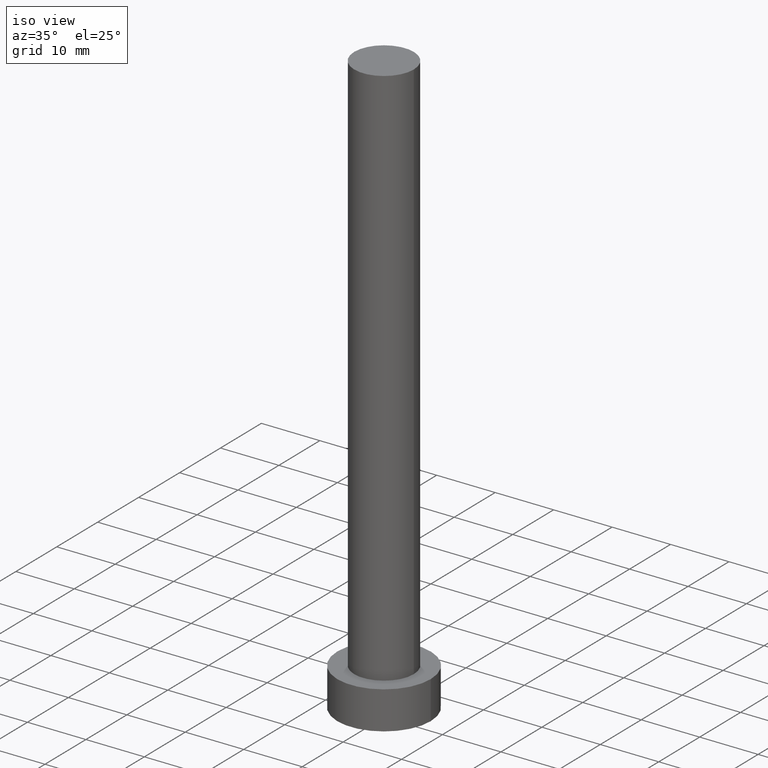
[diagram: clean part render]
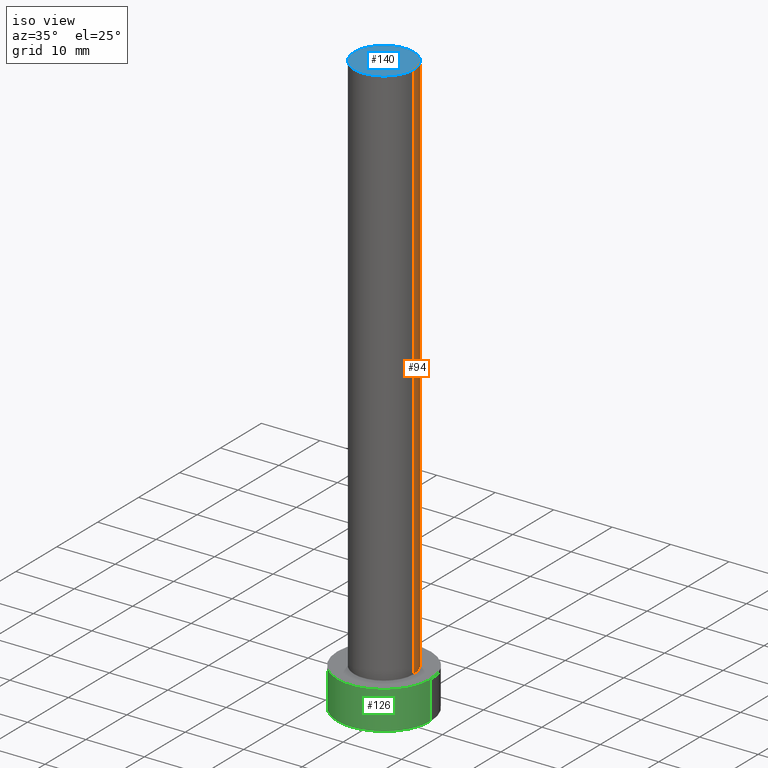
[diagram: same view with three faces highlighted in distinct colors, each labeled with its STEP entity id]
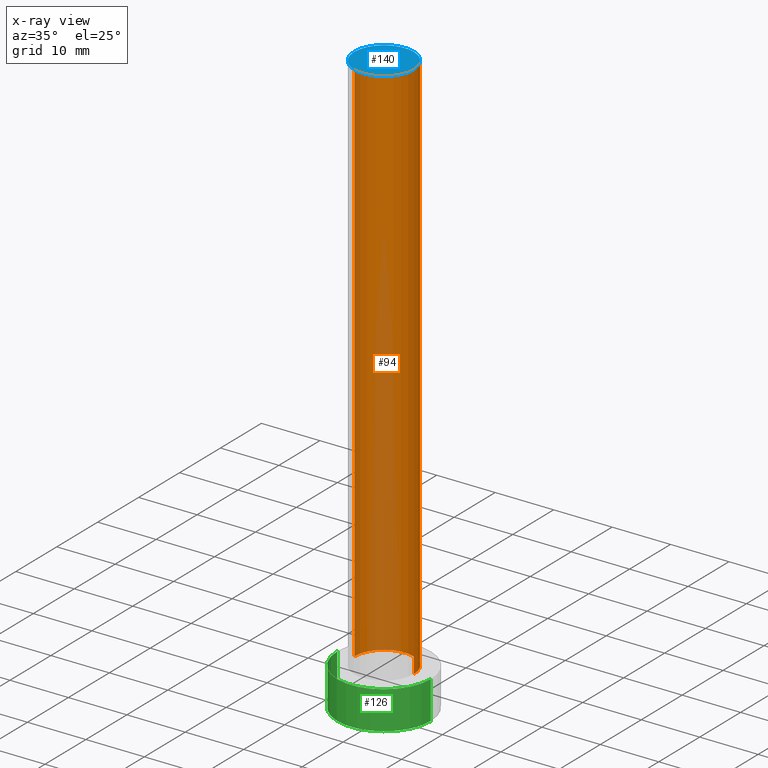
[diagram: x-ray of the same camera — body ghosted, the three highlighted faces saturated]
A machine part, iso view with three faces highlighted in distinct colors.
The next image is the same camera in x-ray (body ghosted, the three faces saturated) — at least one of them is partly hidden behind the body in this view.
Their STEP definitions:

[orange] entity #94 — the highlighted cylindrical surface (edge-blend (fillet) strip) has radius 5.1 mm, axis along (-0, -0, -1).
#39 = CARTESIAN_POINT ( 'NONE',  ( -5.100000000000001421, 0.000000000000000000, 100.0000000000000000 ) ) ;
#56 = VERTEX_POINT ( 'NONE', #221 ) ;
#58 = VERTEX_POINT ( 'NONE', #39 ) ;
#66 = DIRECTION ( 'NONE',  ( -0.000000000000000000, -0.000000000000000000, -1.000000000000000000 ) ) ;
#68 = DIRECTION ( 'NONE',  ( 1.000000000000000000, 0.000000000000000000, 0.000000000000000000 ) ) ;
#70 = DIRECTION ( 'NONE',  ( 0.000000000000000000, 0.000000000000000000, 1.000000000000000000 ) ) ;
#71 = CARTESIAN_POINT ( 'NONE',  ( 0.000000000000000000, 0.000000000000000000, 6.500000000000000000 ) ) ;
#82 = AXIS2_PLACEMENT_3D ( 'NONE', #217, #70, #207 ) ;
#87 = CARTESIAN_POINT ( 'NONE',  ( 0.000000000000000000, 0.000000000000000000, 100.0000000000000000 ) ) ;
#89 = CARTESIAN_POINT ( 'NONE',  ( -5.100000000000001421, 0.000000000000000000, 100.0000000000000000 ) ) ;
#92 = AXIS2_PLACEMENT_3D ( 'NONE', #71, #160, #68 ) ;
#93 = CIRCLE ( 'NONE', #82, 5.100000000000001421 ) ;
#94 = ADVANCED_FACE ( 'NONE', ( #215 ), #196, .T. ) ;
#106 = ORIENTED_EDGE ( 'NONE', *, *, #206, .T. ) ;
#123 = VERTEX_POINT ( 'NONE', #175 ) ;
#125 = ORIENTED_EDGE ( 'NONE', *, *, #192, .F. ) ;
#149 = CARTESIAN_POINT ( 'NONE',  ( 5.100000000000001421, 6.245698675651502811E-16, 100.0000000000000000 ) ) ;
#153 = DIRECTION ( 'NONE',  ( -1.000000000000000000, 0.000000000000000000, 0.000000000000000000 ) ) ;
#156 = CIRCLE ( 'NONE', #92, 5.100000000000001421 ) ;
#160 = DIRECTION ( 'NONE',  ( 0.000000000000000000, 0.000000000000000000, 1.000000000000000000 ) ) ;
#163 = DIRECTION ( 'NONE',  ( -0.000000000000000000, -0.000000000000000000, -1.000000000000000000 ) ) ;
#167 = VERTEX_POINT ( 'NONE', #181 ) ;
#175 = CARTESIAN_POINT ( 'NONE',  ( 5.100000000000001421, 6.245698675651502811E-16, 100.0000000000000000 ) ) ;
#178 = VECTOR ( 'NONE', #180, 1000.000000000000000 ) ;
#180 = DIRECTION ( 'NONE',  ( -0.000000000000000000, -0.000000000000000000, -1.000000000000000000 ) ) ;
#181 = CARTESIAN_POINT ( 'NONE',  ( -5.100000000000001421, 0.000000000000000000, 6.500000000000000000 ) ) ;
#187 = EDGE_CURVE ( 'NONE', #123, #58, #93, .T. ) ;
#191 = ORIENTED_EDGE ( 'NONE', *, *, #187, .F. ) ;
#192 = EDGE_CURVE ( 'NONE', #58, #167, #200, .T. ) ;
#196 = CYLINDRICAL_SURFACE ( 'NONE', #230, 5.100000000000001421 ) ;
#200 = LINE ( 'NONE', #89, #178 ) ;
#204 = VECTOR ( 'NONE', #163, 1000.000000000000000 ) ;
#206 = EDGE_CURVE ( 'NONE', #56, #167, #156, .T. ) ;
#207 = DIRECTION ( 'NONE',  ( 1.000000000000000000, 0.000000000000000000, 0.000000000000000000 ) ) ;
#215 = FACE_OUTER_BOUND ( 'NONE', #255, .T. ) ;
#217 = CARTESIAN_POINT ( 'NONE',  ( 0.000000000000000000, 0.000000000000000000, 100.0000000000000000 ) ) ;
#221 = CARTESIAN_POINT ( 'NONE',  ( 5.100000000000001421, 6.245698675651502811E-16, 6.500000000000000000 ) ) ;
#230 = AXIS2_PLACEMENT_3D ( 'NONE', #87, #66, #153 ) ;
#236 = ORIENTED_EDGE ( 'NONE', *, *, #247, .T. ) ;
#237 = LINE ( 'NONE', #149, #204 ) ;
#247 = EDGE_CURVE ( 'NONE', #123, #56, #237, .T. ) ;
#255 = EDGE_LOOP ( 'NONE', ( #191, #236, #106, #125 ) ) ;

[blue] entity #140 — the highlighted planar face has unit normal (0, 0, 1).
#32 = EDGE_CURVE ( 'NONE', #58, #123, #64, .T. ) ;
#36 = AXIS2_PLACEMENT_3D ( 'NONE', #183, #177, #53 ) ;
#39 = CARTESIAN_POINT ( 'NONE',  ( -5.100000000000001421, 0.000000000000000000, 100.0000000000000000 ) ) ;
#40 = ORIENTED_EDGE ( 'NONE', *, *, #187, .T. ) ;
#51 = AXIS2_PLACEMENT_3D ( 'NONE', #77, #81, #61 ) ;
#53 = DIRECTION ( 'NONE',  ( 1.000000000000000000, 0.000000000000000000, -0.000000000000000000 ) ) ;
#58 = VERTEX_POINT ( 'NONE', #39 ) ;
#61 = DIRECTION ( 'NONE',  ( 1.000000000000000000, 0.000000000000000000, 0.000000000000000000 ) ) ;
#64 = CIRCLE ( 'NONE', #51, 5.100000000000001421 ) ;
#70 = DIRECTION ( 'NONE',  ( 0.000000000000000000, 0.000000000000000000, 1.000000000000000000 ) ) ;
#77 = CARTESIAN_POINT ( 'NONE',  ( 0.000000000000000000, 0.000000000000000000, 100.0000000000000000 ) ) ;
#81 = DIRECTION ( 'NONE',  ( 0.000000000000000000, 0.000000000000000000, 1.000000000000000000 ) ) ;
#82 = AXIS2_PLACEMENT_3D ( 'NONE', #217, #70, #207 ) ;
#93 = CIRCLE ( 'NONE', #82, 5.100000000000001421 ) ;
#111 = PLANE ( 'NONE',  #36 ) ;
#123 = VERTEX_POINT ( 'NONE', #175 ) ;
#140 = ADVANCED_FACE ( 'NONE', ( #218 ), #111, .T. ) ;
#162 = EDGE_LOOP ( 'NONE', ( #186, #40 ) ) ;
#175 = CARTESIAN_POINT ( 'NONE',  ( 5.100000000000001421, 6.245698675651502811E-16, 100.0000000000000000 ) ) ;
#177 = DIRECTION ( 'NONE',  ( 0.000000000000000000, 0.000000000000000000, 1.000000000000000000 ) ) ;
#183 = CARTESIAN_POINT ( 'NONE',  ( 0.000000000000000000, 0.000000000000000000, 100.0000000000000000 ) ) ;
#186 = ORIENTED_EDGE ( 'NONE', *, *, #32, .T. ) ;
#187 = EDGE_CURVE ( 'NONE', #123, #58, #93, .T. ) ;
#207 = DIRECTION ( 'NONE',  ( 1.000000000000000000, 0.000000000000000000, 0.000000000000000000 ) ) ;
#217 = CARTESIAN_POINT ( 'NONE',  ( 0.000000000000000000, 0.000000000000000000, 100.0000000000000000 ) ) ;
#218 = FACE_OUTER_BOUND ( 'NONE', #162, .T. ) ;

[green] entity #126 — the highlighted cylindrical surface (partial cylindrical patch) has radius 8 mm, axis along (-0, -0, -1).
#6 = DIRECTION ( 'NONE',  ( -0.000000000000000000, -0.000000000000000000, -1.000000000000000000 ) ) ;
#9 = DIRECTION ( 'NONE',  ( 0.000000000000000000, 0.000000000000000000, 1.000000000000000000 ) ) ;
#10 = DIRECTION ( 'NONE',  ( 0.000000000000000000, 0.000000000000000000, 1.000000000000000000 ) ) ;
#28 = AXIS2_PLACEMENT_3D ( 'NONE', #65, #133, #232 ) ;
#35 = EDGE_CURVE ( 'NONE', #150, #142, #84, .T. ) ;
#47 = FACE_OUTER_BOUND ( 'NONE', #105, .T. ) ;
#65 = CARTESIAN_POINT ( 'NONE',  ( 0.000000000000000000, 0.000000000000000000, 6.500000000000000000 ) ) ;
#78 = EDGE_CURVE ( 'NONE', #103, #213, #246, .T. ) ;
#84 = LINE ( 'NONE', #172, #216 ) ;
#103 = VERTEX_POINT ( 'NONE', #227 ) ;
#105 = EDGE_LOOP ( 'NONE', ( #145, #240, #146, #189 ) ) ;
#126 = ADVANCED_FACE ( 'NONE', ( #47 ), #244, .T. ) ;
#133 = DIRECTION ( 'NONE',  ( -0.000000000000000000, -0.000000000000000000, -1.000000000000000000 ) ) ;
#138 = CARTESIAN_POINT ( 'NONE',  ( 0.000000000000000000, 0.000000000000000000, 0.000000000000000000 ) ) ;
#142 = VERTEX_POINT ( 'NONE', #219 ) ;
#145 = ORIENTED_EDGE ( 'NONE', *, *, #78, .F. ) ;
#146 = ORIENTED_EDGE ( 'NONE', *, *, #35, .T. ) ;
#150 = VERTEX_POINT ( 'NONE', #248 ) ;
#152 = AXIS2_PLACEMENT_3D ( 'NONE', #158, #9, #250 ) ;
#158 = CARTESIAN_POINT ( 'NONE',  ( 0.000000000000000000, 0.000000000000000000, 6.500000000000000000 ) ) ;
#172 = CARTESIAN_POINT ( 'NONE',  ( -8.000000000000000000, 0.000000000000000000, 6.500000000000000000 ) ) ;
#174 = EDGE_CURVE ( 'NONE', #142, #213, #205, .T. ) ;
#189 = ORIENTED_EDGE ( 'NONE', *, *, #174, .T. ) ;
#195 = DIRECTION ( 'NONE',  ( -0.000000000000000000, -0.000000000000000000, -1.000000000000000000 ) ) ;
#197 = VECTOR ( 'NONE', #195, 1000.000000000000000 ) ;
#202 = DIRECTION ( 'NONE',  ( 1.000000000000000000, 0.000000000000000000, 0.000000000000000000 ) ) ;
#205 = CIRCLE ( 'NONE', #252, 8.000000000000000000 ) ;
#213 = VERTEX_POINT ( 'NONE', #229 ) ;
#214 = CARTESIAN_POINT ( 'NONE',  ( 8.000000000000000000, 9.797174393178823685E-16, 6.500000000000000000 ) ) ;
#216 = VECTOR ( 'NONE', #6, 1000.000000000000000 ) ;
#219 = CARTESIAN_POINT ( 'NONE',  ( -8.000000000000000000, 0.000000000000000000, 0.000000000000000000 ) ) ;
#222 = EDGE_CURVE ( 'NONE', #150, #103, #239, .T. ) ;
#227 = CARTESIAN_POINT ( 'NONE',  ( 8.000000000000000000, 9.797174393178823685E-16, 6.500000000000000000 ) ) ;
#229 = CARTESIAN_POINT ( 'NONE',  ( 8.000000000000000000, 9.797174393178823685E-16, 0.000000000000000000 ) ) ;
#232 = DIRECTION ( 'NONE',  ( -1.000000000000000000, 0.000000000000000000, 0.000000000000000000 ) ) ;
#239 = CIRCLE ( 'NONE', #152, 8.000000000000000000 ) ;
#240 = ORIENTED_EDGE ( 'NONE', *, *, #222, .F. ) ;
#244 = CYLINDRICAL_SURFACE ( 'NONE', #28, 8.000000000000000000 ) ;
#246 = LINE ( 'NONE', #214, #197 ) ;
#248 = CARTESIAN_POINT ( 'NONE',  ( -8.000000000000000000, 0.000000000000000000, 6.500000000000000000 ) ) ;
#250 = DIRECTION ( 'NONE',  ( 1.000000000000000000, 0.000000000000000000, 0.000000000000000000 ) ) ;
#252 = AXIS2_PLACEMENT_3D ( 'NONE', #138, #10, #202 ) ;